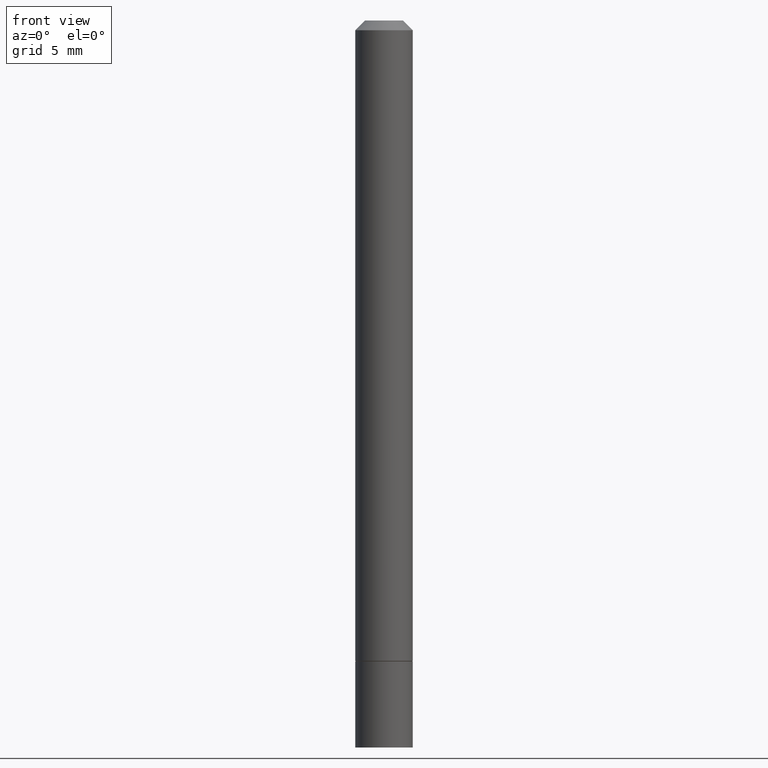
[diagram: clean part render]
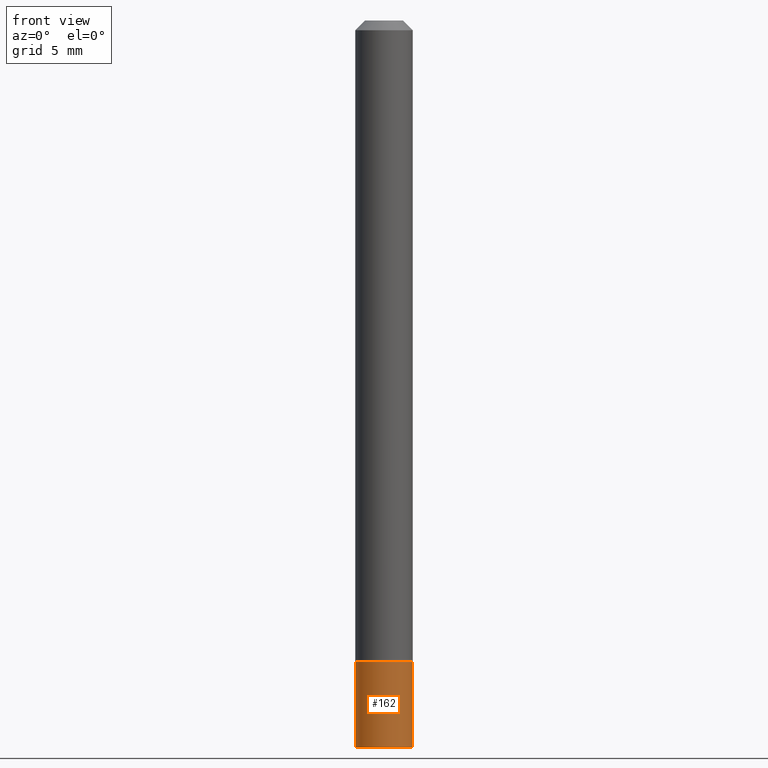
[diagram: same view with one face highlighted and labeled with its STEP entity id]
A machine part, front view. The second image highlights one B-rep face of the part: STEP entity #162.
In plain terms, the highlighted cylindrical surface (edge-blend (fillet) strip) has radius 1.4999 mm, axis along (-0, 0, 1).
Its self-contained STEP definition (entity closure, byte-faithful):
#20 = EDGE_CURVE ( 'NONE', #202, #362, #328, .T. ) ;
#28 = VECTOR ( 'NONE', #151, 39.37007874015748143 ) ;
#29 = ORIENTED_EDGE ( 'NONE', *, *, #331, .F. ) ;
#30 = DIRECTION ( 'NONE',  ( -2.445468806185136597E-29, 3.491481338843145583E-15, 1.000000000000000000 ) ) ;
#34 = DIRECTION ( 'NONE',  ( -2.445468806185136877E-29, 3.491481338843145188E-15, 1.000000000000000000 ) ) ;
#41 = DIRECTION ( 'NONE',  ( 1.000000000000000000, -6.982962677686270655E-15, 0.000000000000000000 ) ) ;
#51 = FACE_OUTER_BOUND ( 'NONE', #200, .T. ) ;
#55 = VERTEX_POINT ( 'NONE', #293 ) ;
#68 = ORIENTED_EDGE ( 'NONE', *, *, #297, .T. ) ;
#85 = AXIS2_PLACEMENT_3D ( 'NONE', #193, #30, #244 ) ;
#87 = VECTOR ( 'NONE', #34, 39.37007874015748143 ) ;
#91 = VERTEX_POINT ( 'NONE', #108 ) ;
#108 = CARTESIAN_POINT ( 'NONE',  ( -0.05904999999999999832, -4.494684498955387902E-15, -1.318899999999999961 ) ) ;
#133 = EDGE_CURVE ( 'NONE', #91, #55, #230, .T. ) ;
#142 = ORIENTED_EDGE ( 'NONE', *, *, #133, .F. ) ;
#151 = DIRECTION ( 'NONE',  ( -2.445468806185136877E-29, 3.491481338843145188E-15, 1.000000000000000000 ) ) ;
#162 = ADVANCED_FACE ( 'NONE', ( #51 ), #171, .T. ) ;
#164 = DIRECTION ( 'NONE',  ( -2.445468806185136597E-29, 3.491481338843145583E-15, 1.000000000000000000 ) ) ;
#168 = CARTESIAN_POINT ( 'NONE',  ( -0.05905000000000002608, -4.494684498955387902E-15, -1.496099999999999985 ) ) ;
#171 = CYLINDRICAL_SURFACE ( 'NONE', #229, 0.05905000000000000526 ) ;
#174 = CARTESIAN_POINT ( 'NONE',  ( -0.05905000000000000526, 4.195754854663391971E-16, -2.904631170795522242E-30 ) ) ;
#193 = CARTESIAN_POINT ( 'NONE',  ( 3.225328808477576615E-29, -4.604914737800224341E-15, -1.318899999999999961 ) ) ;
#200 = EDGE_LOOP ( 'NONE', ( #29, #252, #68, #142 ) ) ;
#202 = VERTEX_POINT ( 'NONE', #168 ) ;
#206 = CARTESIAN_POINT ( 'NONE',  ( 0.05905000000000000526, -4.123439461173741313E-16, 2.879382386107500571E-30 ) ) ;
#218 = AXIS2_PLACEMENT_3D ( 'NONE', #345, #233, #41 ) ;
#229 = AXIS2_PLACEMENT_3D ( 'NONE', #294, #164, #251 ) ;
#230 = CIRCLE ( 'NONE', #85, 0.05904999999999999832 ) ;
#233 = DIRECTION ( 'NONE',  ( -2.445468806185136597E-29, 3.491481338843145583E-15, 1.000000000000000000 ) ) ;
#244 = DIRECTION ( 'NONE',  ( 1.000000000000000000, -6.982962677686273021E-15, 0.000000000000000000 ) ) ;
#251 = DIRECTION ( 'NONE',  ( 1.000000000000000000, -6.982962677686267499E-15, 4.876176775795936353E-29 ) ) ;
#252 = ORIENTED_EDGE ( 'NONE', *, *, #20, .T. ) ;
#256 = CARTESIAN_POINT ( 'NONE',  ( 0.05905000000000001914, -5.635949177160603791E-15, -1.496099999999999985 ) ) ;
#278 = LINE ( 'NONE', #174, #28 ) ;
#293 = CARTESIAN_POINT ( 'NONE',  ( 0.05904999999999999832, -5.017258683917598472E-15, -1.318899999999999961 ) ) ;
#294 = CARTESIAN_POINT ( 'NONE',  ( 0.000000000000000000, 0.000000000000000000, 0.000000000000000000 ) ) ;
#297 = EDGE_CURVE ( 'NONE', #362, #55, #313, .T. ) ;
#313 = LINE ( 'NONE', #206, #87 ) ;
#328 = CIRCLE ( 'NONE', #218, 0.05905000000000001914 ) ;
#331 = EDGE_CURVE ( 'NONE', #202, #91, #278, .T. ) ;
#345 = CARTESIAN_POINT ( 'NONE',  ( 3.658665880933582389E-29, -5.223605231043229660E-15, -1.496099999999999985 ) ) ;
#362 = VERTEX_POINT ( 'NONE', #256 ) ;